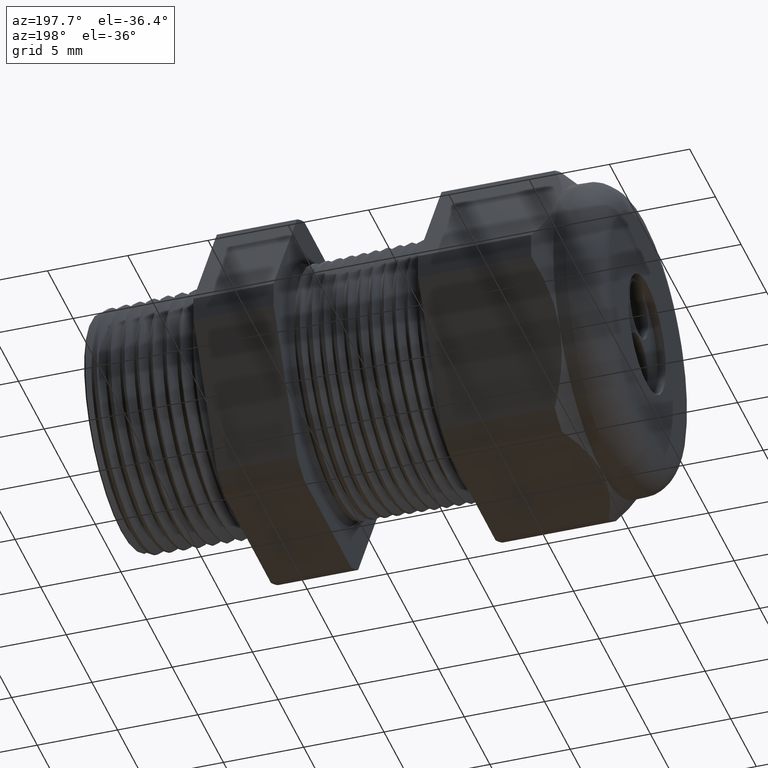
[diagram: clean part render]
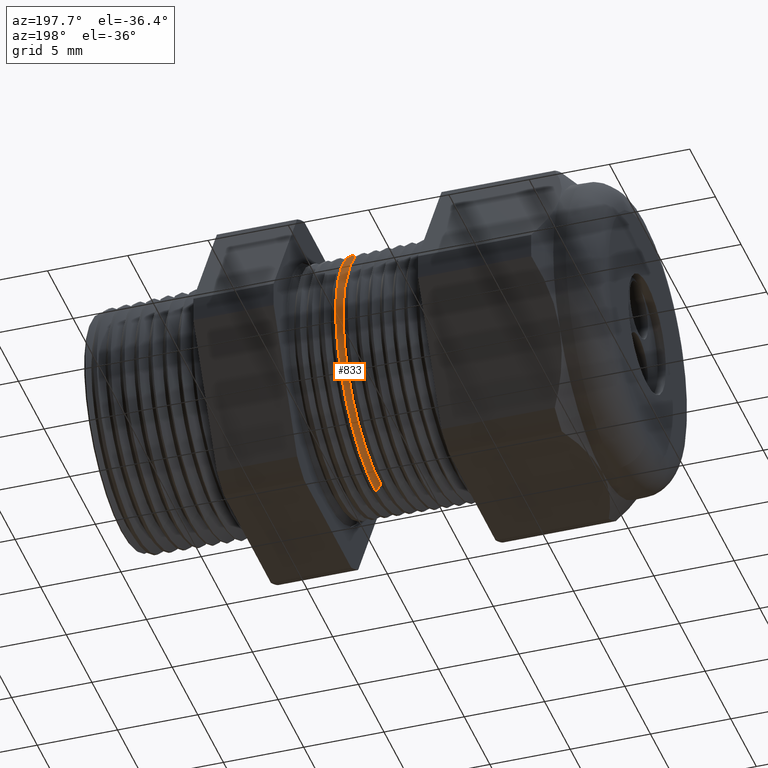
[diagram: same view with one face highlighted and labeled with its STEP entity id]
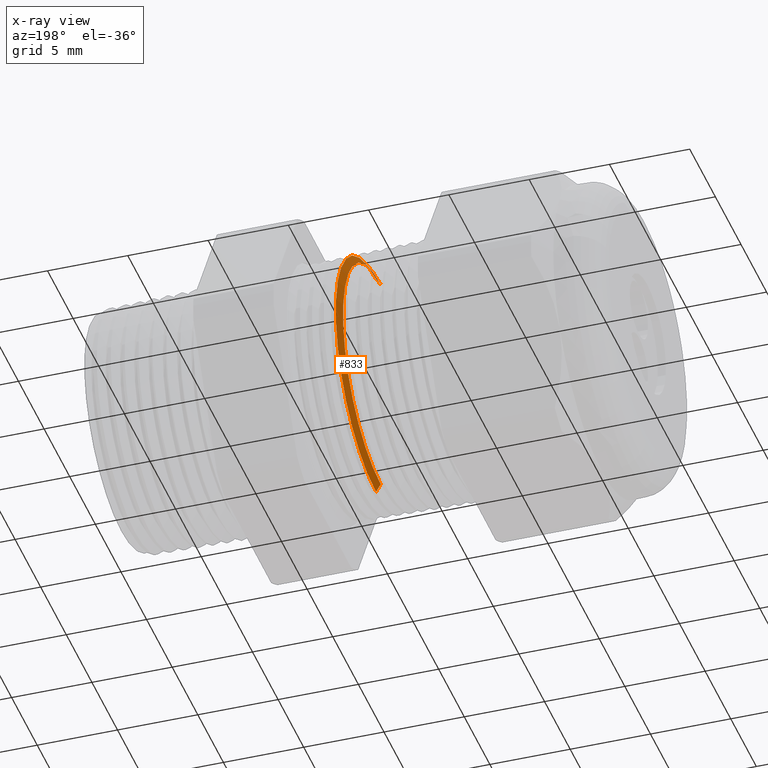
[diagram: x-ray of the same camera — body ghosted, the highlighted face saturated]
A machine part, auxiliary view. The second image highlights one B-rep face of the part: STEP entity #833.
The next image is the same camera in x-ray: the body ghosted, the highlighted face saturated — about 1% of this face is hidden behind the body in this view.
In plain terms, the highlighted conical surface has half-angle 58.5 deg.
Its self-contained STEP definition (entity closure, byte-faithful):
#833 = ADVANCED_FACE ( 'NONE', ( #2730 ), #2791, .T. ) ;
#834 = EDGE_LOOP ( 'NONE', ( #835, #840, #899, #902 ) ) ;
#835 = ORIENTED_EDGE ( 'NONE', *, *, #836, .T. ) ;
#836 = EDGE_CURVE ( 'NONE', #838, #839, #2786, .T. ) ;
#838 = VERTEX_POINT ( 'NONE', #2782 ) ;
#839 = VERTEX_POINT ( 'NONE', #2781 ) ;
#840 = ORIENTED_EDGE ( 'NONE', *, *, #897, .T. ) ;
#897 = EDGE_CURVE ( 'NONE', #839, #898, #2918, .T. ) ;
#898 = VERTEX_POINT ( 'NONE', #2914 ) ;
#899 = ORIENTED_EDGE ( 'NONE', *, *, #900, .T. ) ;
#900 = EDGE_CURVE ( 'NONE', #898, #901, #2913, .T. ) ;
#901 = VERTEX_POINT ( 'NONE', #2908 ) ;
#902 = ORIENTED_EDGE ( 'NONE', *, *, #903, .F. ) ;
#903 = EDGE_CURVE ( 'NONE', #838, #901, #2907, .T. ) ;
#2730 = FACE_OUTER_BOUND ( 'NONE', #834, .T. ) ;
#2781 = CARTESIAN_POINT ( 'NONE',  ( -0.6370917547981792600, 0.0000000000000000000, 0.2896307351718082600 ) ) ;
#2782 = CARTESIAN_POINT ( 'NONE',  ( -0.6370917547981792600, 3.668137896765698900E-017, -0.2896307351718082600 ) ) ;
#2783 = DIRECTION ( 'NONE',  ( 0.0000000000000000000, 0.0000000000000000000, -1.000000000000000000 ) ) ;
#2784 = DIRECTION ( 'NONE',  ( 1.000000000000000000, 0.0000000000000000000, 0.0000000000000000000 ) ) ;
#2785 = AXIS2_PLACEMENT_3D ( 'NONE', #2792, #2784, #2783 ) ;
#2786 = CIRCLE ( 'NONE', #2785, 0.2896307351718082600 ) ;
#2787 = DIRECTION ( 'NONE',  ( 0.0000000000000000000, 0.0000000000000000000, -1.000000000000000000 ) ) ;
#2788 = DIRECTION ( 'NONE',  ( 1.000000000000000000, 0.0000000000000000000, 0.0000000000000000000 ) ) ;
#2789 = CARTESIAN_POINT ( 'NONE',  ( -0.6370917547981792600, 0.0000000000000000000, 0.0000000000000000000 ) ) ;
#2790 = AXIS2_PLACEMENT_3D ( 'NONE', #2789, #2788, #2787 ) ;
#2791 = CONICAL_SURFACE ( 'NONE', #2790, 0.2896307351718082600, 1.021017612416699200 ) ;
#2792 = CARTESIAN_POINT ( 'NONE',  ( -0.6370917547981792600, 0.0000000000000000000, 0.0000000000000000000 ) ) ;
#2904 = DIRECTION ( 'NONE',  ( 0.5224985647159348100, 0.0000000000000000000, -0.8526401643541007300 ) ) ;
#2905 = VECTOR ( 'NONE', #2904, 39.37007874015748900 ) ;
#2906 = CARTESIAN_POINT ( 'NONE',  ( -0.6370917547981792600, 0.0000000000000000000, -0.2896307351718082600 ) ) ;
#2907 = LINE ( 'NONE', #2906, #2905 ) ;
#2908 = CARTESIAN_POINT ( 'NONE',  ( -0.6253251180340946300, 3.782102932276095600E-017, -0.3088321412271148900 ) ) ;
#2909 = DIRECTION ( 'NONE',  ( 0.0000000000000000000, 0.0000000000000000000, -1.000000000000000000 ) ) ;
#2910 = DIRECTION ( 'NONE',  ( -1.000000000000000000, 0.0000000000000000000, 0.0000000000000000000 ) ) ;
#2911 = CARTESIAN_POINT ( 'NONE',  ( -0.6253251180340946300, 0.0000000000000000000, 0.0000000000000000000 ) ) ;
#2912 = AXIS2_PLACEMENT_3D ( 'NONE', #2911, #2910, #2909 ) ;
#2913 = CIRCLE ( 'NONE', #2912, 0.3088321412271149400 ) ;
#2914 = CARTESIAN_POINT ( 'NONE',  ( -0.6253251180340946300, 0.0000000000000000000, 0.3088321412271148900 ) ) ;
#2915 = DIRECTION ( 'NONE',  ( 0.5224985647159348100, 1.044183048100722500E-016, 0.8526401643541007300 ) ) ;
#2916 = VECTOR ( 'NONE', #2915, 39.37007874015748900 ) ;
#2917 = CARTESIAN_POINT ( 'NONE',  ( -0.6370917547981792600, 3.546953527628497700E-017, 0.2896307351718082600 ) ) ;
#2918 = LINE ( 'NONE', #2917, #2916 ) ;